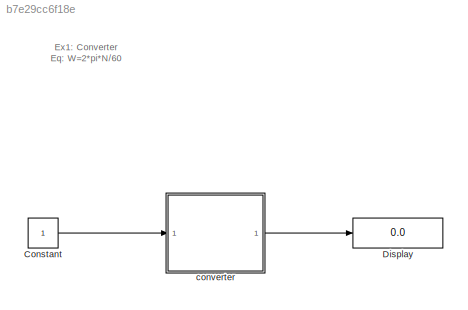
MODEL slx_b7e29cc6f18e
KIND model
CONFIG AbsTol = auto
CONFIG EnableMultiTasking = off
CONFIG FixedStep = auto
CONFIG MaxStep = 1e-6
CONFIG MinStep = auto
CONFIG RelTol = 1e-3
CONFIG SampleTimeConstraint = Unconstrained
CONFIG SolverName = VariableStepAuto
CONFIG StartTime = 0.0
CONFIG StopTime = 10.0
BLOCK [Constant] Constant
BLOCK [Display] Display
  Decimation = 1
  Ports = [1]
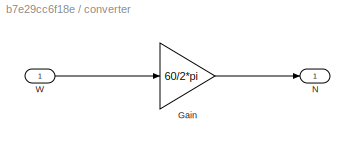
BLOCK [SubSystem] converter
  Ports = [1, 1]
  RequestExecContextInheritance = off
BLOCK [Gain] converter/Gain
  Gain = 60/2*pi
BLOCK [Outport] converter/N
BLOCK [Inport] converter/W
ANNOTATION (root): Ex1: Converter Eq: W=2*pi*N/60
LINE Constant:1 -> converter:1
LINE converter/Gain:1 -> converter/N:1
LINE converter/W:1 -> converter/Gain:1
LINE converter:1 -> Display:1
